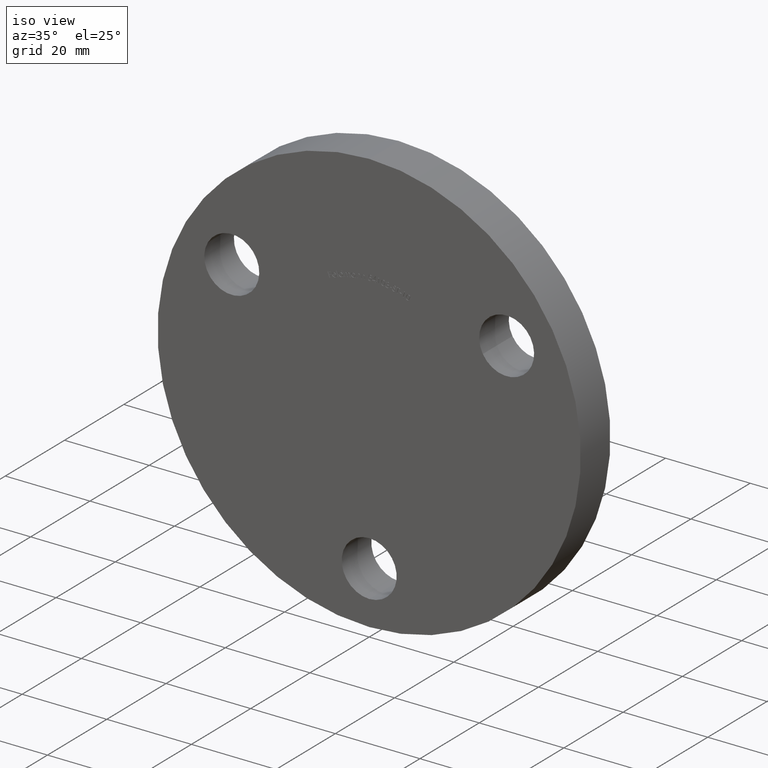
[diagram: clean part render]
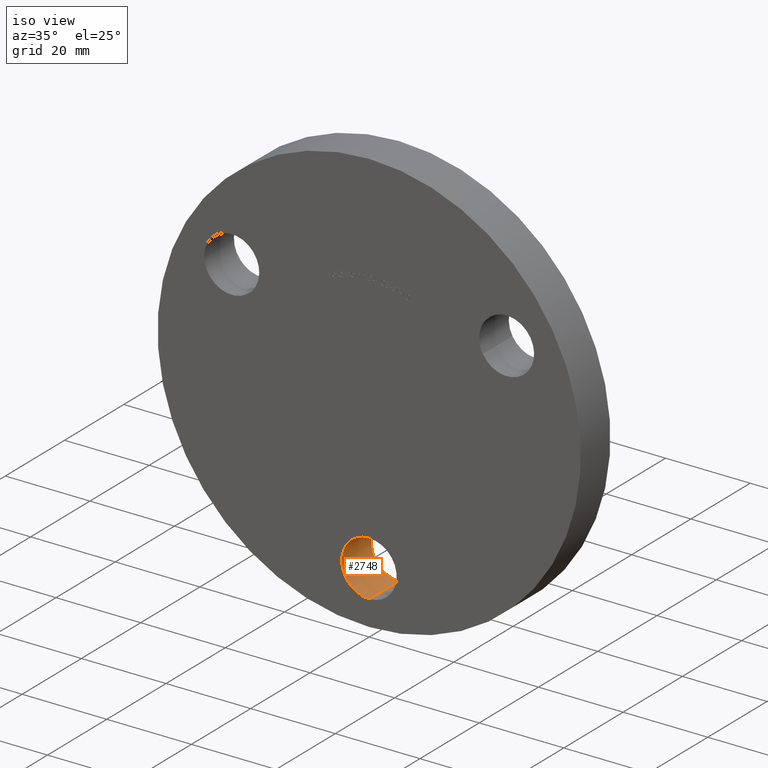
[diagram: same view with one face highlighted and labeled with its STEP entity id]
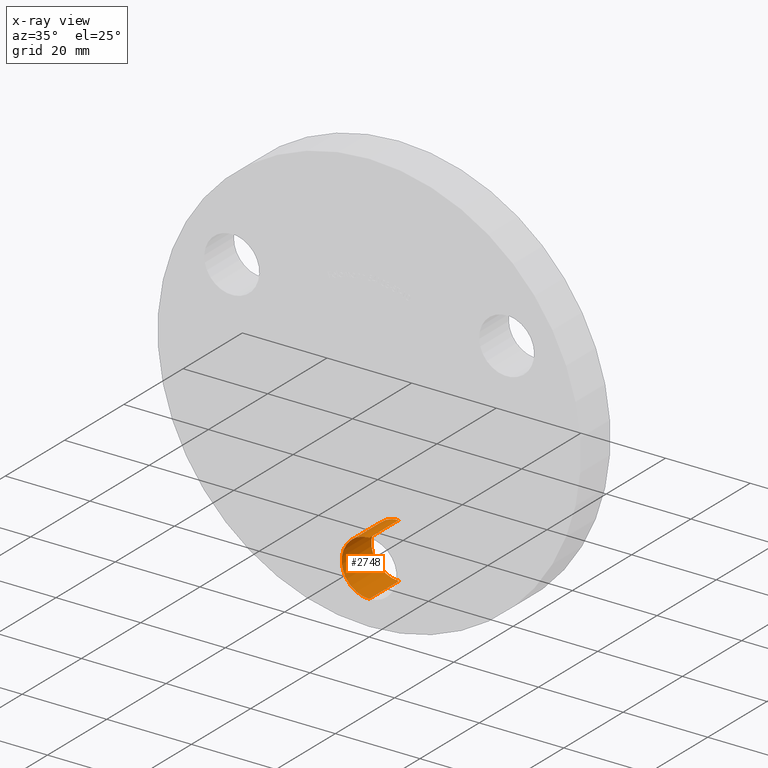
[diagram: x-ray of the same camera — body ghosted, the highlighted face saturated]
A machine part, iso view. The second image highlights one B-rep face of the part: STEP entity #2748.
The next image is the same camera in x-ray: the body ghosted, the highlighted face saturated — about 0% of this face is hidden behind the body in this view.
In plain terms, the highlighted cylindrical surface (edge-blend (fillet) strip) has radius 6.5 mm, axis along (-0, 1, -0).
Its self-contained STEP definition (entity closure, byte-faithful):
#361 = CIRCLE ( 'NONE', #770, 6.499999999999999100 ) ;
#362 = ORIENTED_EDGE ( 'NONE', *, *, #11457, .T. ) ;
#770 = AXIS2_PLACEMENT_3D ( 'NONE', #2047, #9106, #9989 ) ;
#1054 = EDGE_CURVE ( 'NONE', #3535, #10319, #12330, .T. ) ;
#1203 = EDGE_LOOP ( 'NONE', ( #10884, #8318, #362, #1235 ) ) ;
#1235 = ORIENTED_EDGE ( 'NONE', *, *, #1054, .F. ) ;
#1781 = DIRECTION ( 'NONE',  ( -0.0000000000000000000, 1.000000000000000000, -0.0000000000000000000 ) ) ;
#2047 = CARTESIAN_POINT ( 'NONE',  ( 0.0000000000000000000, 0.0000000000000000000, -37.50000000000000000 ) ) ;
#2480 = VECTOR ( 'NONE', #6260, 1000.000000000000000 ) ;
#2502 = VECTOR ( 'NONE', #1781, 1000.000000000000000 ) ;
#2699 = EDGE_CURVE ( 'NONE', #8022, #3535, #361, .T. ) ;
#2748 = ADVANCED_FACE ( 'NONE', ( #9215 ), #8736, .F. ) ;
#2837 = CARTESIAN_POINT ( 'NONE',  ( 7.960204194457797400E-016, 0.0000000000000000000, -44.00000000000000000 ) ) ;
#3034 = DIRECTION ( 'NONE',  ( 0.0000000000000000000, 0.0000000000000000000, 1.000000000000000000 ) ) ;
#3054 = CARTESIAN_POINT ( 'NONE',  ( 7.960204194457795500E-016, 0.0000000000000000000, -44.00000000000000000 ) ) ;
#3266 = AXIS2_PLACEMENT_3D ( 'NONE', #13129, #13034, #3034 ) ;
#3535 = VERTEX_POINT ( 'NONE', #12768 ) ;
#4795 = CARTESIAN_POINT ( 'NONE',  ( 0.0000000000000000000, 0.0000000000000000000, -31.00000000000000000 ) ) ;
#4849 = LINE ( 'NONE', #3054, #2480 ) ;
#5555 = EDGE_CURVE ( 'NONE', #8022, #6777, #4849, .T. ) ;
#6253 = DIRECTION ( 'NONE',  ( 0.0000000000000000000, 0.0000000000000000000, 1.000000000000000000 ) ) ;
#6260 = DIRECTION ( 'NONE',  ( -0.0000000000000000000, 1.000000000000000000, -0.0000000000000000000 ) ) ;
#6777 = VERTEX_POINT ( 'NONE', #11121 ) ;
#8022 = VERTEX_POINT ( 'NONE', #2837 ) ;
#8023 = DIRECTION ( 'NONE',  ( 0.0000000000000000000, 1.000000000000000000, 0.0000000000000000000 ) ) ;
#8318 = ORIENTED_EDGE ( 'NONE', *, *, #5555, .T. ) ;
#8736 = CYLINDRICAL_SURFACE ( 'NONE', #3266, 6.499999999999999100 ) ;
#9106 = DIRECTION ( 'NONE',  ( 0.0000000000000000000, 1.000000000000000000, 0.0000000000000000000 ) ) ;
#9121 = AXIS2_PLACEMENT_3D ( 'NONE', #13003, #8023, #6253 ) ;
#9215 = FACE_OUTER_BOUND ( 'NONE', #1203, .T. ) ;
#9989 = DIRECTION ( 'NONE',  ( 0.0000000000000000000, 0.0000000000000000000, 1.000000000000000000 ) ) ;
#10319 = VERTEX_POINT ( 'NONE', #10716 ) ;
#10464 = CIRCLE ( 'NONE', #9121, 6.499999999999999100 ) ;
#10716 = CARTESIAN_POINT ( 'NONE',  ( 0.0000000000000000000, 10.00000000000000000, -31.00000000000000000 ) ) ;
#10884 = ORIENTED_EDGE ( 'NONE', *, *, #2699, .F. ) ;
#11121 = CARTESIAN_POINT ( 'NONE',  ( 7.960204194457797400E-016, 10.00000000000000000, -44.00000000000000000 ) ) ;
#11457 = EDGE_CURVE ( 'NONE', #6777, #10319, #10464, .T. ) ;
#12330 = LINE ( 'NONE', #4795, #2502 ) ;
#12768 = CARTESIAN_POINT ( 'NONE',  ( 0.0000000000000000000, 0.0000000000000000000, -31.00000000000000000 ) ) ;
#13003 = CARTESIAN_POINT ( 'NONE',  ( 0.0000000000000000000, 10.00000000000000000, -37.50000000000000000 ) ) ;
#13034 = DIRECTION ( 'NONE',  ( -0.0000000000000000000, 1.000000000000000000, -0.0000000000000000000 ) ) ;
#13129 = CARTESIAN_POINT ( 'NONE',  ( 0.0000000000000000000, 0.0000000000000000000, -37.50000000000000000 ) ) ;